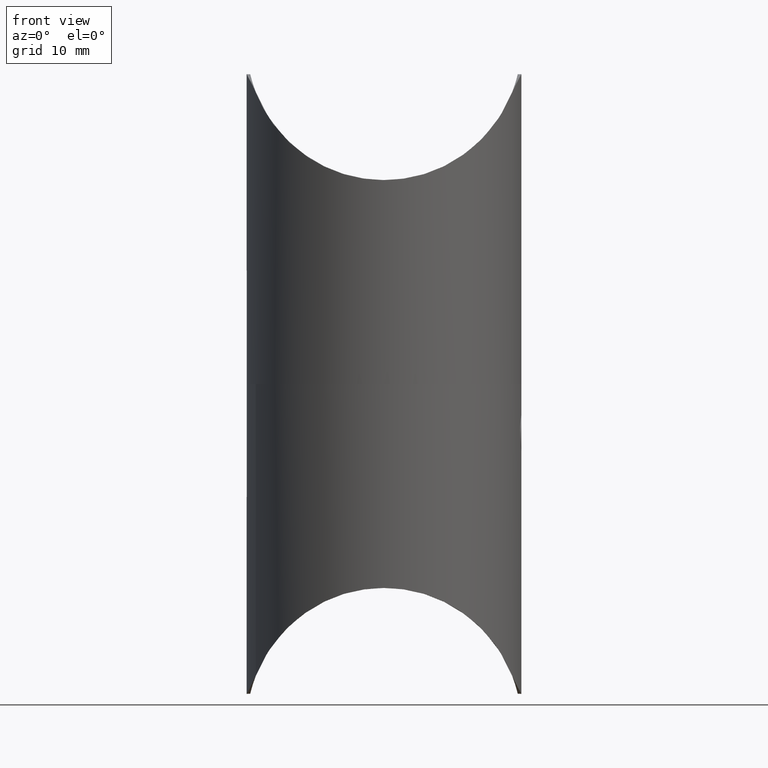
[diagram: clean part render]
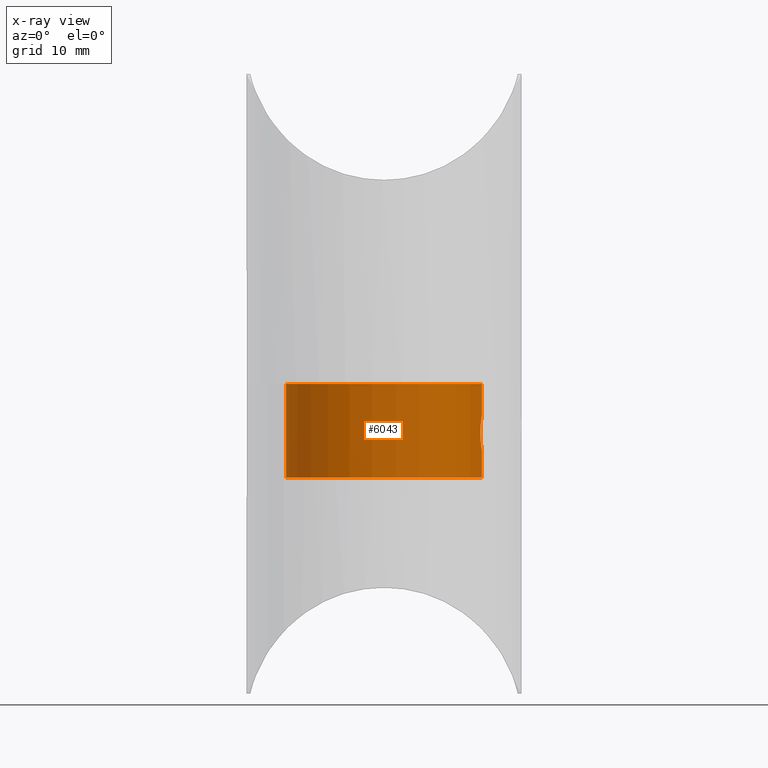
[diagram: x-ray — body ghosted, one internal face saturated and labeled with its STEP entity id]
A machine part, front view, then the same camera in x-ray: the body is ghosted and one INTERNAL B-rep face — a face not visible from any outside direction — is saturated and labeled: STEP entity #6043.
In plain terms, the highlighted cylindrical surface (bore or boss wall) has radius 12 mm, axis along (0, 0, 1).
Its self-contained STEP definition (entity closure, byte-faithful):
#300 = CARTESIAN_POINT ( 'NONE',  ( 11.99755274049298670, 0.2773594515023563023, 8.086139662524763239 ) ) ;
#404 = CARTESIAN_POINT ( 'NONE',  ( 11.92000811184873044, -1.386700109079762155, 7.582971449647879503 ) ) ;
#494 = CARTESIAN_POINT ( 'NONE',  ( 11.82661786571889095, 2.032695826505253933, 6.545004586811005609 ) ) ;
#589 = CARTESIAN_POINT ( 'NONE',  ( 12.00000000000000355, -8.944667923005411581E-16, 3.899999999999997247 ) ) ;
#737 = AXIS2_PLACEMENT_3D ( 'NONE', #7096, #9208, #3700 ) ;
#754 = EDGE_CURVE ( 'NONE', #11672, #11672, #1597, .T. ) ;
#1524 = CARTESIAN_POINT ( 'NONE',  ( 11.96442116355708407, 0.9321221279122056114, 4.113181683491658802 ) ) ;
#1577 = CARTESIAN_POINT ( 'NONE',  ( 11.99758661110946534, 0.2756691184617633961, 3.913668504053608110 ) ) ;
#1597 = CIRCLE ( 'NONE', #2630, 12.00000000000000178 ) ;
#1676 = FACE_OUTER_BOUND ( 'NONE', #3558, .T. ) ;
#1760 = CARTESIAN_POINT ( 'NONE',  ( 0.000000000000000000, 0.000000000000000000, 11.49999999999995204 ) ) ;
#1805 = AXIS2_PLACEMENT_3D ( 'NONE', #1760, #8372, #9494 ) ;
#1860 = CARTESIAN_POINT ( 'NONE',  ( 11.86092440456027930, -1.823295257947106673, 4.949067841735958595 ) ) ;
#1914 = ORIENTED_EDGE ( 'NONE', *, *, #4664, .T. ) ;
#2131 = EDGE_CURVE ( 'NONE', #4948, #4948, #13444, .T. ) ;
#2544 = CARTESIAN_POINT ( 'NONE',  ( 11.91979888924957720, 1.388480957413880557, 4.418606647993155612 ) ) ;
#2630 = AXIS2_PLACEMENT_3D ( 'NONE', #7385, #6096, #10495 ) ;
#2688 = CARTESIAN_POINT ( 'NONE',  ( 11.88363963771688958, 1.678406588973372360, 4.708609844555006418 ) ) ;
#2732 = CARTESIAN_POINT ( 'NONE',  ( 11.85073445340300680, 1.887576422289822586, 6.930609710695851966 ) ) ;
#2877 = CARTESIAN_POINT ( 'NONE',  ( 11.89558327999342247, -1.582580269031047315, 4.612880063868909808 ) ) ;
#3558 = EDGE_LOOP ( 'NONE', ( #12088 ) ) ;
#3643 = CARTESIAN_POINT ( 'NONE',  ( 11.86112961740385252, 1.821947627606113951, 7.053175765665420371 ) ) ;
#3698 = CARTESIAN_POINT ( 'NONE',  ( 11.82504449829075810, 2.044408044357564069, 5.447579286169219159 ) ) ;
#3700 = DIRECTION ( 'NONE',  ( -1.000000000000000000, 0.000000000000000000, 0.000000000000000000 ) ) ;
#3745 = CARTESIAN_POINT ( 'NONE',  ( 11.93201236731082382, 1.280706470412639852, 4.330089670438442617 ) ) ;
#3790 = CARTESIAN_POINT ( 'NONE',  ( 11.81726473798053334, 2.086383612213994265, 6.275473674643914812 ) ) ;
#4065 = CARTESIAN_POINT ( 'NONE',  ( 11.82651144408109012, -2.033312204027048598, 5.457381181988207430 ) ) ;
#4664 = EDGE_CURVE ( 'NONE', #5805, #5805, #8399, .T. ) ;
#4782 = CARTESIAN_POINT ( 'NONE',  ( 11.99004954306559512, -0.5503883424061315477, 8.044983021353914410 ) ) ;
#4887 = CARTESIAN_POINT ( 'NONE',  ( 11.93187980565469886, 1.281899275903434221, 7.668955991529876393 ) ) ;
#4948 = VERTEX_POINT ( 'NONE', #7727 ) ;
#5033 = CARTESIAN_POINT ( 'NONE',  ( 11.81732158297307578, -2.086061813760280881, 6.277659829950025028 ) ) ;
#5280 = FACE_OUTER_BOUND ( 'NONE', #13418, .T. ) ;
#5795 = CARTESIAN_POINT ( 'NONE',  ( 11.83346516143669547, 1.992976193566195153, 6.676036297475428150 ) ) ;
#5805 = VERTEX_POINT ( 'NONE', #13174 ) ;
#5846 = CARTESIAN_POINT ( 'NONE',  ( 11.98839789607710316, 0.5444206455312673443, 3.967174691575610534 ) ) ;
#5905 = CARTESIAN_POINT ( 'NONE',  ( 11.95433794049144183, -1.052157554987844135, 7.822613799004675350 ) ) ;
#6035 = CARTESIAN_POINT ( 'NONE',  ( 11.88335354840743818, -1.670880537889621209, 4.720538305759947484 ) ) ;
#6043 = ADVANCED_FACE ( 'NONE', ( #11490, #1676, #5280 ), #9748, .F. ) ;
#6085 = CARTESIAN_POINT ( 'NONE',  ( 11.86122223683398680, -1.821353511792389579, 7.054233764746970614 ) ) ;
#6096 = DIRECTION ( 'NONE',  ( 0.000000000000000000, 0.000000000000000000, -1.000000000000000000 ) ) ;
#6174 = CARTESIAN_POINT ( 'NONE',  ( 11.82667835274313717, -2.032344071998362978, 6.546192681212236408 ) ) ;
#6903 = CARTESIAN_POINT ( 'NONE',  ( 11.88346114303485379, 1.670101859341210693, 7.280403112519454822 ) ) ;
#6953 = CARTESIAN_POINT ( 'NONE',  ( 11.85938010180749203, 1.834771168086872795, 4.942461510080891074 ) ) ;
#7000 = CARTESIAN_POINT ( 'NONE',  ( 11.93197218499959433, -1.281120951505777539, 7.669636394085003417 ) ) ;
#7045 = CARTESIAN_POINT ( 'NONE',  ( 12.00000000000000355, -8.944667923005411581E-16, 3.899999999999997247 ) ) ;
#7095 = CARTESIAN_POINT ( 'NONE',  ( 11.81480711405180983, 2.100079251906457500, 6.136027825990308493 ) ) ;
#7096 = CARTESIAN_POINT ( 'NONE',  ( 0.000000000000000000, 0.000000000000000000, 11.49999999999995204 ) ) ;
#7136 = CARTESIAN_POINT ( 'NONE',  ( 11.95583868080448120, -1.059235442716478071, 4.166198353229365381 ) ) ;
#7184 = CARTESIAN_POINT ( 'NONE',  ( 11.83365049448734574, -1.991881971882787372, 6.679269136001753537 ) ) ;
#7385 = CARTESIAN_POINT ( 'NONE',  ( 0.000000000000000000, 0.000000000000000000, 0.000000000000000000 ) ) ;
#7727 = CARTESIAN_POINT ( 'NONE',  ( -12.00000000000000178, 0.000000000000000000, 11.49999999999995204 ) ) ;
#8191 = CARTESIAN_POINT ( 'NONE',  ( 11.96444018425253120, 0.9318621776127387069, 7.886937320789688677 ) ) ;
#8372 = DIRECTION ( 'NONE',  ( 0.000000000000000000, 0.000000000000000000, -1.000000000000000000 ) ) ;
#8399 = B_SPLINE_CURVE_WITH_KNOTS ( 'NONE', 3,
 ( #7045, #9163, #1577, #5846, #10240, #1524, #12387, #3745, #2544, #2688, #6953, #3698, #10395, #7095, #3790, #494, #5795, #2732, #3643, #6903, #11482, #13600, #4887, #12582, #8191, #10434, #11336, #300, #10285, #11393, #4782, #12487, #5905, #7000, #404, #12780, #9394, #6085, #8430, #7184, #6174, #5033, #13890, #11675, #10675, #4065, #12822, #10534, #1860, #6035, #2877, #13743, #7136, #10587, #9544, #9449, #10628, #589 ),
 .UNSPECIFIED., .T., .F.,
 ( 4, 2, 2, 2, 2, 2, 2, 2, 2, 2, 2, 2, 2, 2, 2, 2, 2, 2, 2, 2, 2, 2, 2, 2, 2, 2, 2, 2, 4 ),
 ( 0.000000000000000000, 0.0004110877741431805251, 0.0008221755482863610503, 0.001233263322429541467, 0.001644351096572722101, 0.002466526644859082500, 0.003288702193145442466, 0.003699789967288624401, 0.004110877741431805468, 0.004521965515574986536, 0.004933053289718169337, 0.005344141063861348670, 0.005755228838004529737, 0.006166316612147710804, 0.006577404386290892739, 0.007399579934577254006, 0.007810667708720437676, 0.008221755482863619610, 0.008632843257006802412, 0.009043931031149985214, 0.009455018805293169751, 0.009866106579436352553, 0.01027719435357953535, 0.01068828212772271816, 0.01109936990186590269, 0.01151045767600908723, 0.01233263322429544763, 0.01274372099843863217, 0.01315480877258181150 ),
 .UNSPECIFIED. ) ;
#8430 = CARTESIAN_POINT ( 'NONE',  ( 11.85098633725270290, -1.886001232725556420, 6.933809241330322060 ) ) ;
#8726 = CARTESIAN_POINT ( 'NONE',  ( -12.00000000000000178, 0.000000000000000000, 0.000000000000000000 ) ) ;
#9117 = ORIENTED_EDGE ( 'NONE', *, *, #754, .T. ) ;
#9163 = CARTESIAN_POINT ( 'NONE',  ( 12.00000000000000000, 0.1390225640938815010, 3.899999999999995914 ) ) ;
#9208 = DIRECTION ( 'NONE',  ( 0.000000000000000000, 0.000000000000000000, -1.000000000000000000 ) ) ;
#9268 = EDGE_LOOP ( 'NONE', ( #1914 ) ) ;
#9394 = CARTESIAN_POINT ( 'NONE',  ( 11.88360518176614278, -1.669086411898566213, 7.281751924229729056 ) ) ;
#9449 = CARTESIAN_POINT ( 'NONE',  ( 11.99758543647637588, -0.2763240157166885758, 3.913670562736303982 ) ) ;
#9494 = DIRECTION ( 'NONE',  ( -1.000000000000000000, 0.000000000000000000, 0.000000000000000000 ) ) ;
#9544 = CARTESIAN_POINT ( 'NONE',  ( 11.98826971918961526, -0.5475403247006511709, 3.967925917865798624 ) ) ;
#9748 = CYLINDRICAL_SURFACE ( 'NONE', #737, 12.00000000000000178 ) ;
#10240 = CARTESIAN_POINT ( 'NONE',  ( 11.98151183172213763, 0.6779378043882478000, 4.007680910537622765 ) ) ;
#10285 = CARTESIAN_POINT ( 'NONE',  ( 11.99999049797129835, 0.1380107357596332407, 8.099945702689016258 ) ) ;
#10395 = CARTESIAN_POINT ( 'NONE',  ( 11.81484956178276668, 2.099840436459506243, 5.724290231699664666 ) ) ;
#10434 = CARTESIAN_POINT ( 'NONE',  ( 11.98151228912666966, 0.6779080366305378913, 7.992320321767017788 ) ) ;
#10495 = DIRECTION ( 'NONE',  ( -1.000000000000000000, 0.000000000000000000, 0.000000000000000000 ) ) ;
#10534 = CARTESIAN_POINT ( 'NONE',  ( 11.85071665137476415, -1.887684512886479871, 5.069660372659845038 ) ) ;
#10587 = CARTESIAN_POINT ( 'NONE',  ( 11.98136072408851405, -0.6804482128722016965, 4.008595400150826826 ) ) ;
#10628 = CARTESIAN_POINT ( 'NONE',  ( 12.00000000000000711, -0.1390225640938828056, 3.899999999999998135 ) ) ;
#10675 = CARTESIAN_POINT ( 'NONE',  ( 11.81722603926612081, -2.086600151662307390, 5.726333217600911851 ) ) ;
#11336 = CARTESIAN_POINT ( 'NONE',  ( 11.98828488230610567, 0.5470151797888779255, 8.032161743065051596 ) ) ;
#11393 = CARTESIAN_POINT ( 'NONE',  ( 12.00001891821712441, -0.2735354104619608928, 8.100108104106006124 ) ) ;
#11482 = CARTESIAN_POINT ( 'NONE',  ( 11.89553171067913340, 1.583040996913484433, 7.386752282683329618 ) ) ;
#11490 = FACE_BOUND ( 'NONE', #9268, .T. ) ;
#11672 = VERTEX_POINT ( 'NONE', #8726 ) ;
#11675 = CARTESIAN_POINT ( 'NONE',  ( 11.81480205006284656, -2.100107742461962523, 5.862900920845072861 ) ) ;
#12088 = ORIENTED_EDGE ( 'NONE', *, *, #2131, .F. ) ;
#12387 = CARTESIAN_POINT ( 'NONE',  ( 11.95429157110416263, 1.052635373737397462, 4.177702455116090619 ) ) ;
#12487 = CARTESIAN_POINT ( 'NONE',  ( 11.96460655519220140, -0.9296471495185140155, 7.887982229435081649 ) ) ;
#12582 = CARTESIAN_POINT ( 'NONE',  ( 11.95409979737488904, 1.054760392010273495, 7.821032775836709305 ) ) ;
#12780 = CARTESIAN_POINT ( 'NONE',  ( 11.89586917460358251, -1.580451568311319388, 7.389571388286485742 ) ) ;
#12822 = CARTESIAN_POINT ( 'NONE',  ( 11.83348956523701823, -1.992827810120420873, 5.323596302788402568 ) ) ;
#13174 = CARTESIAN_POINT ( 'NONE',  ( 12.00000000000000178, -7.347880794884120722E-16, 3.899999999999995470 ) ) ;
#13418 = EDGE_LOOP ( 'NONE', ( #9117 ) ) ;
#13444 = CIRCLE ( 'NONE', #1805, 12.00000000000000178 ) ;
#13600 = CARTESIAN_POINT ( 'NONE',  ( 11.91990506011928197, 1.387644347599305661, 7.582259098887396576 ) ) ;
#13743 = CARTESIAN_POINT ( 'NONE',  ( 11.93172128118156650, -1.293009970936232600, 4.322867531882417680 ) ) ;
#13890 = CARTESIAN_POINT ( 'NONE',  ( 11.81484057874539495, -2.099890975967357853, 6.140380114349050622 ) ) ;